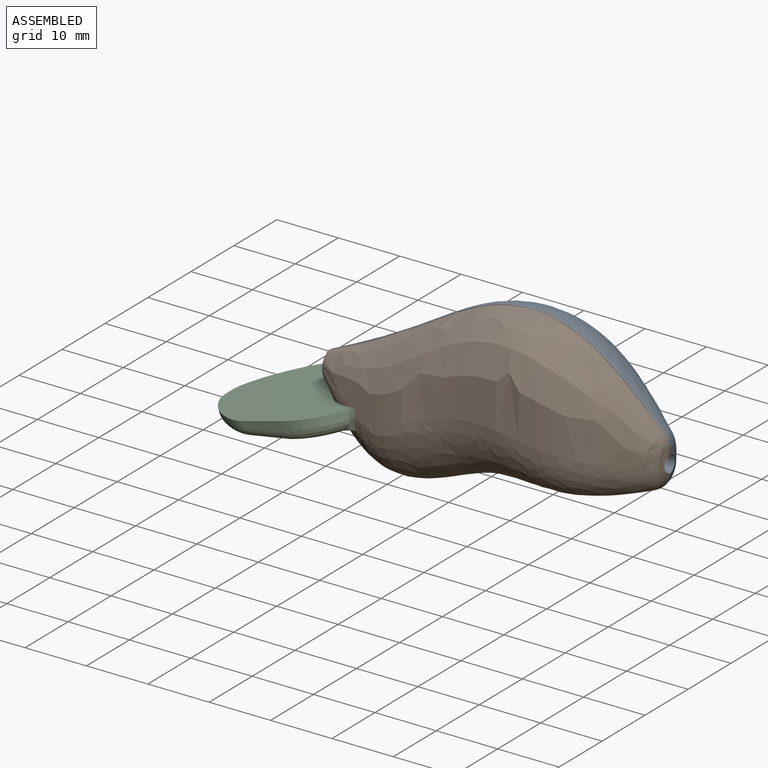
[diagram: assembled view]
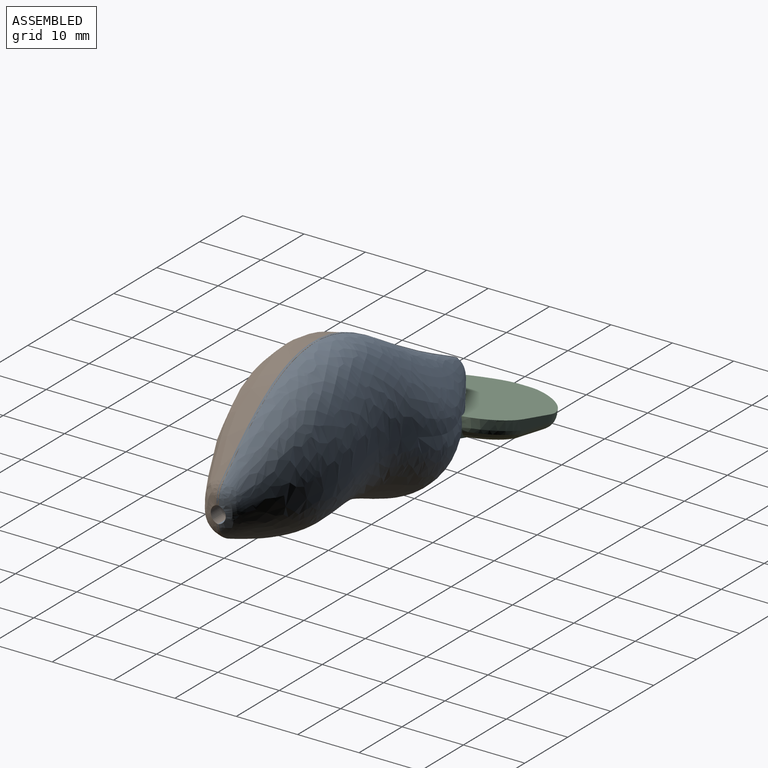
[diagram: assembled view, second angle]
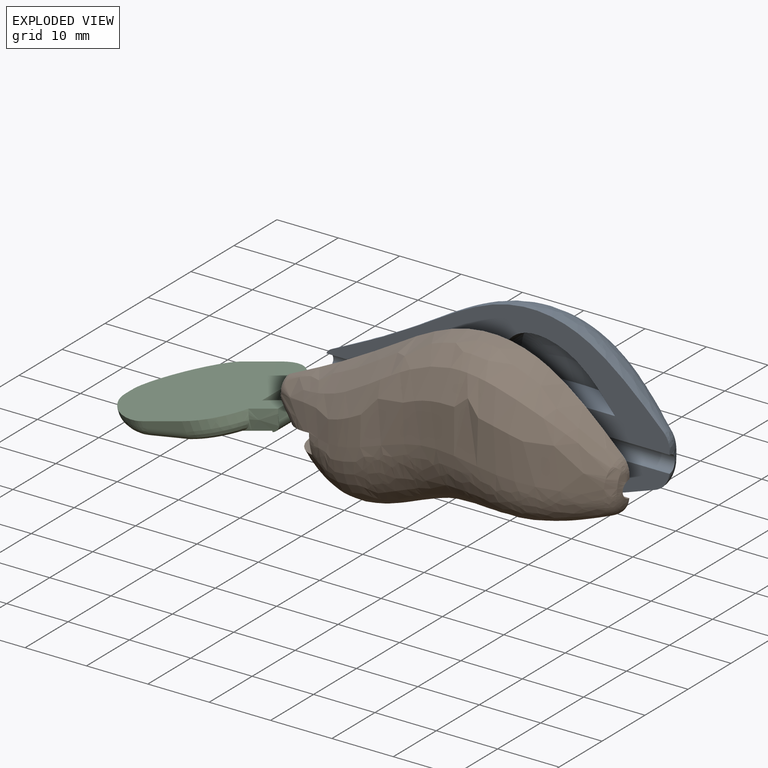
[diagram: exploded view]
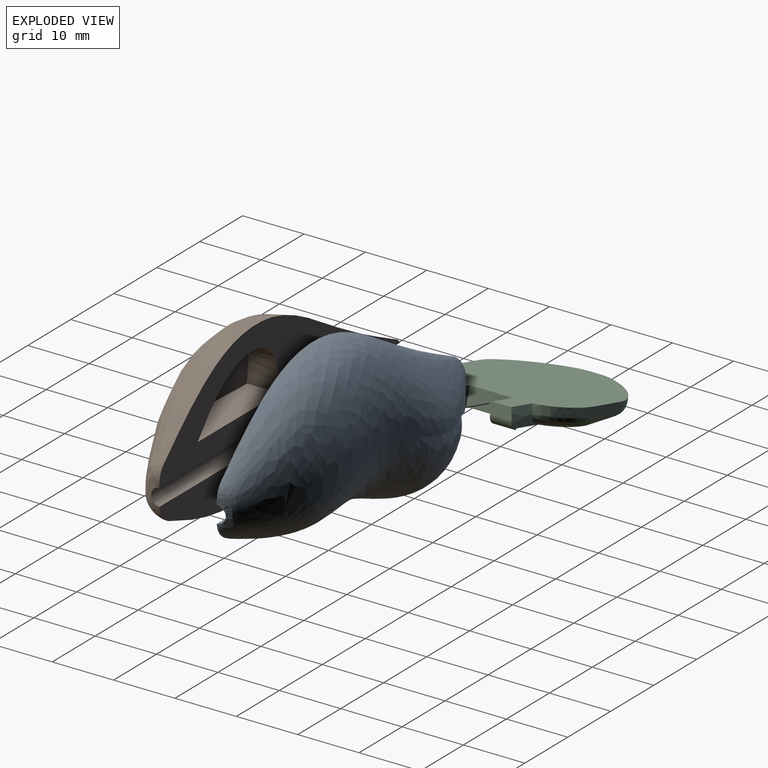
[diagram: exploded view, second angle]
ASSEMBLY  parts=3 mates=2
PART A: 42 faces, bbox 58.6x27.7x36.7 mm
  f0: plane 3.48x0.58mm, normal (-0.26,0,0.97), area 2.1mm2, adj f1,f34,f35,f40
  f1: plane 3.52x0.58mm, normal (-0.97,0,-0.26), area 2.1mm2, adj f0,f34,f35,f36
  f2: plane 3.47x1.45mm, normal (-0.97,0,-0.26), area 5mm2, adj f32,f34,f35,f37
  f3: plane 37.72x10.36mm, normal (0,-1,0), area 172.1mm2, adj f6,f9,f10,f17,f19,f21,f22,f23
  f4: cylinder r=1.37mm len=1.29mm, axis (0,-1,0), area 0mm2, adj f5,f6
  f5: plane 1.29x0.16mm, normal (0,-1,0), area 0.1mm2, adj f4,f6
  f6: cylinder r=1.4mm len=55.98mm, axis (-1,0,0), area 241.1mm2, adj f3,f4,f5,f7,f8,f9,f10,f11
  f7: bspline ~2.46x1.81mm, area 2.1mm2, adj f6,f8,f12,f18
  f8: bspline ~0.95x0.77mm, area 0.2mm2, adj f6,f7,f14,f18
  f9: cylinder r=1.4mm len=12.19mm, axis (0,0,1), area 49.6mm2, adj f3,f6,f15,f17
  f10: bspline ~2.97x2.25mm, area 2.9mm2, adj f3,f6,f11,f17
  f11: bspline ~4.68x3.6mm, area 11mm2, adj f6,f10,f13,f17
  f12: bspline ~2.1x2.02mm, area 1.8mm2, adj f6,f7,f15,f17,f18
  f13: bspline ~4.98x3.56mm, area 14.9mm2, adj f6,f11,f14,f16,f17,f18
  f14: plane 55.95x15.55mm, normal (0,-1,0), area 412.7mm2, adj f6,f8,f13,f16,f18,f27,f28,f29
  f15: plane 15.46x10.81mm, normal (0,-1,0), area 90.4mm2, adj f6,f9,f12,f17,f31,f32,f33
  f16: plane 0.72x0.45mm, normal (1,0,0), area 0.2mm2, adj f6,f13,f14
  f17: bspline ~56x25.06mm, area 684.1mm2, adj f3,f9,f10,f11,f12,f13,f15,f18
  f18: bspline ~56x22.38mm, area 867.9mm2, adj f7,f8,f12,f13,f14,f17
  f19: cylinder r=1.75mm len=3.5mm, axis (0,-1,0), area 30.8mm2, adj f3,f20
  f20: plane 3.5x3.5mm, normal (0,-1,0), area 9.6mm2, adj f19
  f21: plane 12.48x2.8mm, normal (0.13,0,-0.99), area 35.3mm2, adj f3,f22,f24,f25
  f22: plane 4.16x2.8mm, normal (0.99,0,0.13), area 11.8mm2, adj f3,f21,f23,f25
  f23: plane 12.48x2.8mm, normal (-0.13,0,0.99), area 35.3mm2, adj f3,f22,f24,f25
  f24: plane 4.16x2.8mm, normal (-0.99,0,-0.13), area 11.8mm2, adj f3,f21,f23,f25
  f25: plane 13.04x5.85mm, normal (0,-1,0), area 52.9mm2, adj f21,f22,f23,f24
  f26: bspline ~42.51x21.41mm, area 0mm2, adj f27,f28
  f27: extruded ~18.94x8.58mm, area 110.5mm2, adj f14,f26,f28
  f28: plane 21.57x8.28mm, normal (0,0,1), area 98.6mm2, adj f14,f26,f27
  f29: cylinder r=1.75mm len=3.5mm, axis (0,1,0), area 26.9mm2, adj f14,f30
  f30: plane 3.5x3.5mm, normal (0,-1,0), area 9.6mm2, adj f29
  f31: plane 3.48x2.9mm, normal (-0.97,0,-0.26), area 10.5mm2, adj f15,f32,f33,f34
  f32: plane 11.44x6.6mm, normal (0.26,0,-0.97), area 46.5mm2, adj f2,f15,f17,f31,f34,f35
  f33: plane 8.34x6.97mm, normal (-0.26,0,0.97), area 36.6mm2, adj f15,f17,f31,f34,f35,f41
  f34: plane 5.61x4.19mm, normal (0,1,0), area 15.3mm2, adj f0,f1,f2,f31,f32,f33,f36,f37
  f35: extruded ~5.61x4.19mm, area 15mm2, adj f0,f1,f2,f17,f32,f33,f38,f39
  f36: cylinder r=1.75mm len=3.52mm, axis (0,-1,0), area 3.3mm2, adj f1,f34,f37,f38
  f37: plane 3.46x0.24mm, normal (0.26,0,-0.97), area 0.9mm2, adj f2,f34,f36,f38
  f38: bspline ~1.12x0.36mm, area 0.1mm2, adj f35,f36,f37
  f39: bspline ~1.59x1.36mm, area 0.4mm2, adj f35,f40,f41
  f40: cylinder r=1.75mm len=3.52mm, axis (0,-1,0), area 3.3mm2, adj f0,f34,f35,f39,f41
  f41: plane 3.48x0.24mm, normal (0.97,0,0.26), area 0.9mm2, adj f33,f34,f39,f40
PART B: 44 faces, bbox 58.7x27.8x36.7 mm
  f0: plane 3.55x0.58mm, normal (-0.26,0,0.97), area 2.1mm2, adj f36,f37,f38,f40
  f1: extruded ~5.61x4.19mm, area 14.1mm2, adj f2,f15,f34,f35,f39
  f2: plane 3.55x1.45mm, normal (-0.97,0,-0.26), area 5.1mm2, adj f1,f34,f36,f42
  f3: plane 3.55x2.9mm, normal (-0.97,0,-0.26), area 10.7mm2, adj f13,f34,f35,f36
  f4: plane 37.72x10.36mm, normal (0,1,0), area 172.1mm2, adj f8,f10,f15,f19,f22,f24,f25,f26
  f5: bspline ~2.42x1.95mm, area 2.3mm2, adj f7,f11,f14,f19
  f6: bspline ~4.38x3.42mm, area 11.2mm2, adj f9,f14,f15,f17,f18,f19
  f7: bspline ~2.18x2.15mm, area 2.1mm2, adj f5,f13,f14,f15,f19
  f8: bspline ~2.95x2.25mm, area 2mm2, adj f4,f9,f15,f19
  f9: bspline ~4.17x3.53mm, area 11.9mm2, adj f6,f8,f15,f19
  f10: cylinder r=1.4mm len=12.19mm, axis (0,0,1), area 49.6mm2, adj f4,f13,f15,f19
  f11: bspline ~0.95x0.78mm, area 0.2mm2, adj f5,f12,f14,f19
  f12: plane 55.95x15.55mm, normal (0,1,0), area 412.7mm2, adj f11,f14,f16,f18,f19,f29,f30,f32
  f13: plane 15.46x10.81mm, normal (0,1,0), area 90.4mm2, adj f3,f7,f10,f15,f19,f34,f35
  f14: bspline ~56x22.38mm, area 862.5mm2, adj f5,f6,f7,f11,f12,f15,f16,f17
  f15: bspline ~56x25.06mm, area 694.9mm2, adj f1,f4,f6,f7,f8,f9,f10,f13
  f16: bspline ~2.55x1.66mm, area 0.7mm2, adj f12,f14,f17,f18
  f17: bspline ~2.5x2.1mm, area 2.1mm2, adj f6,f14,f16
  f18: plane 0.69x0.35mm, normal (1,0,0), area 0.2mm2, adj f6,f12,f16,f19
  f19: cylinder r=1.4mm len=55.98mm, axis (-1,0,0), area 241.3mm2, adj f4,f5,f6,f7,f8,f9,f10,f11
  f20: cylinder r=1.37mm len=1.29mm, axis (0,-1,0), area 0mm2, adj f19,f21
  f21: plane 1.29x0.16mm, normal (0,1,0), area 0.1mm2, adj f19,f20
  f22: cylinder r=1.75mm len=3.5mm, axis (0,-1,0), area 26.9mm2, adj f4,f23
  f23: plane 3.5x3.5mm, normal (0,1,0), area 9.6mm2, adj f22
  f24: plane 12.48x2.8mm, normal (0.13,0,-0.99), area 35.3mm2, adj f4,f25,f27,f28
  f25: plane 4.16x2.8mm, normal (0.99,0,0.13), area 11.8mm2, adj f4,f24,f26,f28
  f26: plane 12.48x2.8mm, normal (-0.13,0,0.99), area 35.3mm2, adj f4,f25,f27,f28
  f27: plane 4.16x2.8mm, normal (-0.99,0,-0.13), area 11.8mm2, adj f4,f24,f26,f28
  f28: plane 13.04x5.85mm, normal (0,1,0), area 52.9mm2, adj f24,f25,f26,f27
  f29: extruded ~18.94x8.58mm, area 105.5mm2, adj f12,f30,f31
  f30: plane 21.64x8.24mm, normal (0,0,1), area 96.5mm2, adj f12,f29,f31
  f31: bspline ~42.51x21.41mm, area 0mm2, adj f29,f30
  f32: cylinder r=1.75mm len=3.5mm, axis (0,1,0), area 30.8mm2, adj f12,f33
  f33: plane 3.5x3.5mm, normal (0,1,0), area 9.6mm2, adj f32
  f34: plane 11.44x6.73mm, normal (0.26,0,-0.97), area 47.6mm2, adj f1,f2,f3,f13,f15,f36
  f35: plane 8.35x7.11mm, normal (-0.26,0,0.97), area 37.2mm2, adj f1,f3,f13,f15,f36,f41
  f36: plane 5.61x4.19mm, normal (0,-1,0), area 15.3mm2, adj f0,f2,f3,f34,f35,f38,f40,f41
  f37: extruded ~0.73x0.73mm, area 0.2mm2, adj f0,f38,f40
  f38: plane 3.6x0.58mm, normal (-0.97,0,-0.26), area 2.1mm2, adj f0,f36,f37,f43
  f39: bspline ~2.18x1.4mm, area 0.6mm2, adj f1,f40,f41,f42,f43
  f40: cylinder r=1.75mm len=3.6mm, axis (0,-1,0), area 3.4mm2, adj f0,f36,f37,f39,f41
  f41: plane 3.55x0.24mm, normal (0.97,0,0.26), area 0.9mm2, adj f35,f36,f39,f40
  f42: plane 3.55x0.24mm, normal (0.26,0,-0.97), area 0.9mm2, adj f2,f36,f39,f43
  f43: cylinder r=1.75mm len=3.6mm, axis (0,-1,0), area 3.4mm2, adj f36,f38,f39,f42
PART C: 34 faces, bbox 30.2x23.4x13.2 mm
  f0: plane 20.04x10.97mm, normal (0.26,0,-0.97), area 161.3mm2, adj f3,f5,f6,f9,f11,f12,f18,f20
  f1: plane 29.35x23.41mm, normal (-0.26,0,0.97), area 517.9mm2, adj f2,f3,f4,f5,f6,f7,f8,f9
  f2: plane 1.04x0.12mm, normal (-0.97,0,-0.26), area 0.1mm2, adj f1,f13,f14,f29
  f3: plane 7.04x2.9mm, normal (0.97,0,0.26), area 21.1mm2, adj f0,f1,f5,f11
  f4: plane 3.48x1.46mm, normal (0.97,0,0.26), area 5mm2, adj f1,f5,f6,f23
  f5: plane 5.33x4.19mm, normal (0,-1,0), area 14.8mm2, adj f0,f1,f3,f4,f20,f22,f23
  f6: extruded ~7.31x4.65mm, area 15.5mm2, adj f0,f1,f4,f15,f21,f33
  f7: plane 6.65x2.54mm, normal (0,1,0), area 7.9mm2, adj f1,f13,f15,f31,f32
  f8: plane 3.57x1.47mm, normal (0.97,0,0.26), area 5.1mm2, adj f1,f9,f11,f24
  f9: extruded ~7.31x4.65mm, area 15.6mm2, adj f0,f1,f8,f16,f17,f25
  f10: plane 6.68x2.54mm, normal (0,-1,0), area 7.9mm2, adj f1,f14,f16,f26,f27
  f11: plane 5.33x4.19mm, normal (0,1,0), area 14.8mm2, adj f0,f1,f3,f8,f18,f19,f24
  f12: plane 20.04x15.6mm, normal (0.17,0,-0.98), area 264.1mm2, adj f0,f27,f28,f29,f30,f31
  f13: bspline ~11.33x11mm, area 7.7mm2, adj f1,f2,f7,f30
  f14: bspline ~11.33x11mm, area 7.7mm2, adj f1,f2,f10,f28
  f15: bspline ~9.28x8mm, area 13.1mm2, adj f1,f6,f7,f33
  f16: bspline ~7.84x5.28mm, area 12.6mm2, adj f1,f9,f10,f25
  f17: bspline ~2.08x1.31mm, area 0.3mm2, adj f9,f18,f19,f24
  f18: plane 3.55x0.19mm, normal (-0.97,0,-0.26), area 0.7mm2, adj f0,f11,f17,f19
  f19: cylinder r=1.7mm len=3.55mm, axis (0,-1,0), area 0.4mm2, adj f11,f17,f18,f24
  f20: plane 3.48x0.19mm, normal (-0.97,0,-0.26), area 0.7mm2, adj f0,f5,f21,f22
  f21: bspline ~2.08x1.31mm, area 0.3mm2, adj f6,f20,f22,f23
  f22: cylinder r=1.7mm len=3.49mm, axis (0,-1,0), area 0.4mm2, adj f5,f20,f21,f23
  f23: cylinder r=1.5mm len=3.49mm, axis (0,-1,0), area 8.5mm2, adj f4,f5,f21,f22
  f24: cylinder r=1.5mm len=3.55mm, axis (0,-1,0), area 8.7mm2, adj f8,f11,f17,f19
  f25: bspline ~10.11x6.21mm, area 19.6mm2, adj f0,f9,f16,f26
  f26: cylinder r=1.5mm len=1.54mm, axis (0.97,0,0.26), area 0.8mm2, adj f0,f10,f25,f27
  f27: cylinder r=1.5mm len=6.46mm, axis (-0.98,0,-0.17), area 14.8mm2, adj f10,f12,f26,f28
  f28: bspline ~13.19x13.12mm, area 35.8mm2, adj f12,f14,f27,f29
  f29: cylinder r=1.5mm len=1.71mm, axis (0,-1,0), area 2.3mm2, adj f2,f12,f28,f30
  f30: bspline ~13.19x13.12mm, area 35.8mm2, adj f12,f13,f29,f31
  f31: cylinder r=1.5mm len=6.46mm, axis (-0.98,0,-0.17), area 14.8mm2, adj f7,f12,f30,f32
  f32: cylinder r=1.5mm len=1.53mm, axis (-0.97,0,-0.26), area 0.7mm2, adj f0,f7,f31,f33
  f33: bspline ~10.09x6.2mm, area 19.8mm2, adj f0,f6,f15,f32
PLACE A at identity
PLACE B t=(0,0.35,0)mm
PLACE C at identity
MATE slider B.f32 <-> A.f29  axis (0,1,0) through (22.29,-2.45,6.23)mm
MATE slider C.f4 <-> A.f2  axis (0.97,0,0.26) through (13.51,5.14,-1.36)mm
